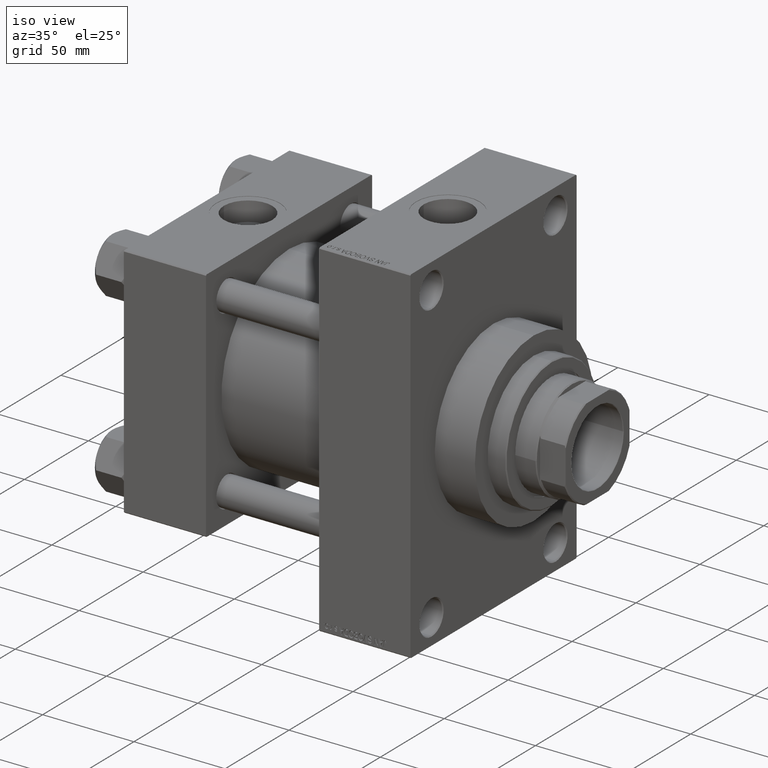
[diagram: clean part render]
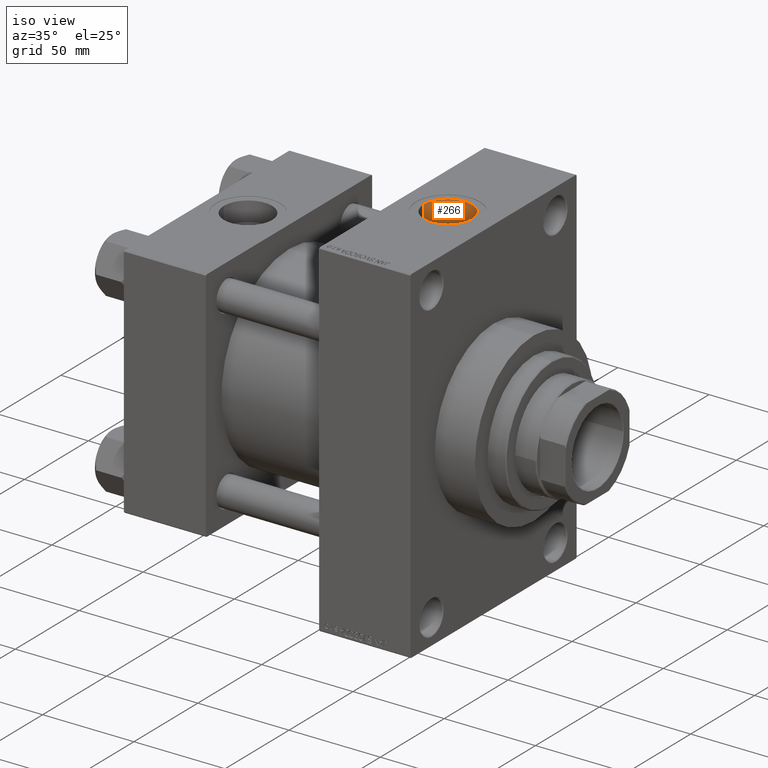
[diagram: same view with one face highlighted and labeled with its STEP entity id]
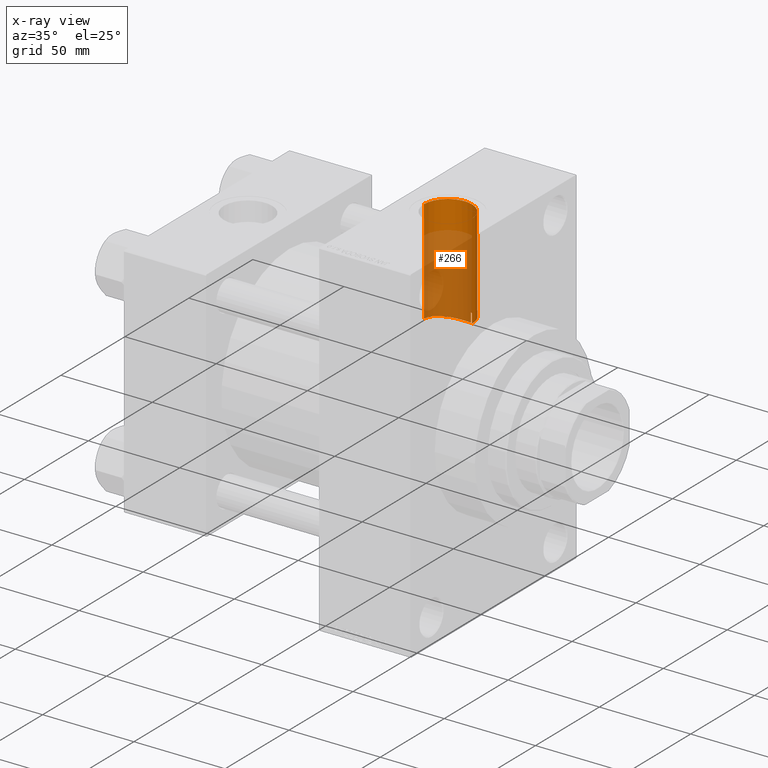
[diagram: x-ray of the same camera — body ghosted, the highlighted face saturated]
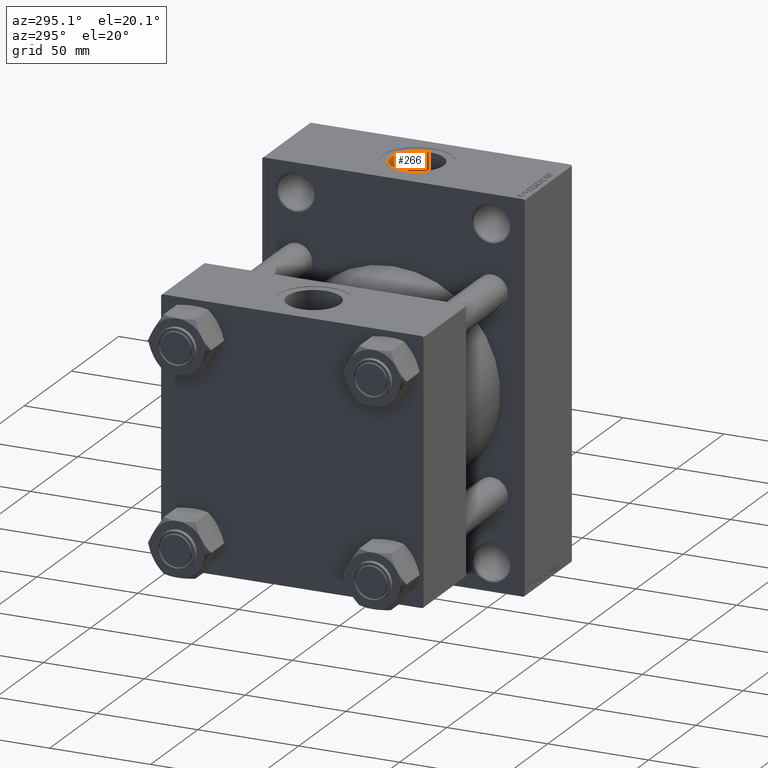
[diagram: same view with one face highlighted and labeled with its STEP entity id]
A machine part, iso view. The second image highlights one B-rep face of the part: STEP entity #266.
The next image is the same camera in x-ray: the body ghosted, the highlighted face saturated — about 66% of this face is hidden behind the body in this view.
A second angle (auxiliary view) of the same face is appended — the face is thin or edge-on in the first view.
In plain terms, the highlighted cylindrical surface (edge-blend (fillet) strip) has radius 13.22 mm, axis along (0, 0, -1).
Its self-contained STEP definition (entity closure, byte-faithful):
#248 = EDGE_CURVE ( 'NONE', #12705, #26371, #42294, .T. ) ;
#266 = ADVANCED_FACE ( 'NONE', ( #28784 ), #31915, .F. ) ;
#365 = ORIENTED_EDGE ( 'NONE', *, *, #10001, .F. ) ;
#1930 = CARTESIAN_POINT ( 'NONE',  ( 145.2200000000000273, 1.618983068472802532E-15, 117.7999999999999545 ) ) ;
#1947 = CARTESIAN_POINT ( 'NONE',  ( 123.6646875080168684, 10.27358711865541174, 36.58624237847440241 ) ) ;
#2222 = CARTESIAN_POINT ( 'NONE',  ( 138.9652939437245323, 11.25862793121222794, 41.24295429618410935 ) ) ;
#3438 = CARTESIAN_POINT ( 'NONE',  ( 145.2200000000000557, 0.7128280605864657504, 42.75000000000000000 ) ) ;
#3665 = CARTESIAN_POINT ( 'NONE',  ( 144.9920876238891481, 2.469797748352716038, 42.68003640910877294 ) ) ;
#4504 = EDGE_CURVE ( 'NONE', #33328, #23657, #36617, .T. ) ;
#5345 = CARTESIAN_POINT ( 'NONE',  ( 120.4196655872704156, 6.397496821543470880, 37.46048315550977037 ) ) ;
#5576 = CARTESIAN_POINT ( 'NONE',  ( 123.2767444913755241, 9.946585948839693714, 36.67693463411971067 ) ) ;
#5810 = CARTESIAN_POINT ( 'NONE',  ( 124.4737087384340555, 10.88020985411995589, 36.41044846182738581 ) ) ;
#6047 = CARTESIAN_POINT ( 'NONE',  ( 119.3778971728958282, 4.062892629112905496, 37.79548799711346163 ) ) ;
#6742 = CARTESIAN_POINT ( 'NONE',  ( 135.7400000000000091, 12.67993690836040344, 35.82204907595320265 ) ) ;
#9208 = CARTESIAN_POINT ( 'NONE',  ( 121.5365498440031757, 8.095730104901397439, 37.12974234449202982 ) ) ;
#9413 = ORIENTED_EDGE ( 'NONE', *, *, #26811, .F. ) ;
#9457 = AXIS2_PLACEMENT_3D ( 'NONE', #31619, #42705, #13739 ) ;
#9676 = CARTESIAN_POINT ( 'NONE',  ( 130.1279962358461546, 13.09681056689220213, 35.67188185037125692 ) ) ;
#9886 = ORIENTED_EDGE ( 'NONE', *, *, #248, .T. ) ;
#10001 = EDGE_CURVE ( 'NONE', #21607, #23657, #45879, .T. ) ;
#10808 = CARTESIAN_POINT ( 'NONE',  ( 135.7400000000000091, 12.67993690836040344, 117.7999999999999545 ) ) ;
#11772 = CARTESIAN_POINT ( 'NONE',  ( 145.2200000000000273, 1.618983068472802926E-15, 94.79999999999996874 ) ) ;
#11820 = CARTESIAN_POINT ( 'NONE',  ( 143.3681678082568851, 6.757087634520167363, 42.21369697903652707 ) ) ;
#12705 = VERTEX_POINT ( 'NONE', #31387 ) ;
#12743 = VERTEX_POINT ( 'NONE', #6742 ) ;
#12868 = CARTESIAN_POINT ( 'NONE',  ( 135.7400000000000091, 12.67993690836040344, 40.82623788692756506 ) ) ;
#13118 = CARTESIAN_POINT ( 'NONE',  ( 137.0879043388673040, 12.22198265844281728, 40.96689205292911140 ) ) ;
#13311 = CARTESIAN_POINT ( 'NONE',  ( 126.2275989359079347, 11.90429981927680636, 36.08787882260794078 ) ) ;
#13739 = DIRECTION ( 'NONE',  ( 1.000000000000000000, 0.000000000000000000, 0.000000000000000000 ) ) ;
#14555 = CARTESIAN_POINT ( 'NONE',  ( 144.7498696806301552, 3.512400709947661070, 42.60688462453909864 ) ) ;
#15906 = CARTESIAN_POINT ( 'NONE',  ( 142.1508856579517897, 8.498775455946683266, 41.90066282866281711 ) ) ;
#16228 = CARTESIAN_POINT ( 'NONE',  ( 145.2200000000000273, 5.235365066362932155E-15, 42.75000000000000000 ) ) ;
#16699 = CARTESIAN_POINT ( 'NONE',  ( 125.7708974169249529, 11.67150488739251202, 36.16418007451800776 ) ) ;
#16719 = VECTOR ( 'NONE', #46115, 1000.000000000000000 ) ;
#16978 = CARTESIAN_POINT ( 'NONE',  ( 139.8392309499369333, 10.65085741936022679, 41.40248309854266040 ) ) ;
#17183 = DIRECTION ( 'NONE',  ( 0.000000000000000000, 0.000000000000000000, -1.000000000000000000 ) ) ;
#17415 = CARTESIAN_POINT ( 'NONE',  ( 133.7262910150043353, 13.11687709635734933, 35.66449319161083764 ) ) ;
#17658 = CARTESIAN_POINT ( 'NONE',  ( 132.1929245059119751, 13.22853373566559476, 35.62312093936006363 ) ) ;
#18370 = CARTESIAN_POINT ( 'NONE',  ( 130.6429904835857201, 13.16039151796706719, 35.64835659901555687 ) ) ;
#18415 = CARTESIAN_POINT ( 'NONE',  ( 145.2200000000000273, 5.235365066362932155E-15, 42.75000000000000000 ) ) ;
#19540 = CARTESIAN_POINT ( 'NONE',  ( 144.6496243838042801, 3.857681275829315748, 42.57693607211757580 ) ) ;
#20958 = AXIS2_PLACEMENT_3D ( 'NONE', #28054, #46621, #38907 ) ;
#21002 = ORIENTED_EDGE ( 'NONE', *, *, #31391, .F. ) ;
#21037 = CARTESIAN_POINT ( 'NONE',  ( 134.7394249595122631, 12.94326451559381397, 35.72786647778971769 ) ) ;
#21607 = VERTEX_POINT ( 'NONE', #11772 ) ;
#23400 = CARTESIAN_POINT ( 'NONE',  ( 141.6858958810278466, 9.024595134817808173, 41.78957529832796070 ) ) ;
#23657 = VERTEX_POINT ( 'NONE', #16228 ) ;
#23719 = ORIENTED_EDGE ( 'NONE', *, *, #46091, .T. ) ;
#23943 = CARTESIAN_POINT ( 'NONE',  ( 122.1862536335408720, 8.872148406854295288, 36.95190922194040439 ) ) ;
#24177 = CARTESIAN_POINT ( 'NONE',  ( 119.0207089073834226, 2.563288280031358557, 37.91676483506162754 ) ) ;
#24893 = CARTESIAN_POINT ( 'NONE',  ( 135.7400000000000091, 12.67993690836040344, 35.82204907595320265 ) ) ;
#25424 = CARTESIAN_POINT ( 'NONE',  ( 144.9210219195441596, 2.818391061395473685, 42.65841356615450053 ) ) ;
#25580 = VECTOR ( 'NONE', #17183, 1000.000000000000000 ) ;
#26003 = LINE ( 'NONE', #10808, #45705 ) ;
#26371 = VERTEX_POINT ( 'NONE', #39200 ) ;
#26539 = CARTESIAN_POINT ( 'NONE',  ( 144.3113288498328188, 4.868756459318225538, 42.47724650916214983 ) ) ;
#26811 = EDGE_CURVE ( 'NONE', #12705, #21607, #40307, .T. ) ;
#28041 = CARTESIAN_POINT ( 'NONE',  ( 127.6411868225753636, 12.52307552529214618, 35.87982703132361451 ) ) ;
#28054 = CARTESIAN_POINT ( 'NONE',  ( 132.0000000000000000, 0.000000000000000000, 117.7999999999999545 ) ) ;
#28535 = CARTESIAN_POINT ( 'NONE',  ( 118.7800000000000011, 0.000000000000000000, 117.7999999999999545 ) ) ;
#28784 = FACE_OUTER_BOUND ( 'NONE', #34163, .T. ) ;
#29298 = CARTESIAN_POINT ( 'NONE',  ( 142.7881170177278989, 7.649199120474215796, 42.06109021706770079 ) ) ;
#30634 = CARTESIAN_POINT ( 'NONE',  ( 145.1627215507658661, 1.419340817186896642, 42.73218467206118021 ) ) ;
#30953 = CARTESIAN_POINT ( 'NONE',  ( 120.6766881679797621, 6.841684745575781434, 37.38151937335765496 ) ) ;
#31199 = CARTESIAN_POINT ( 'NONE',  ( 118.9296438586280260, 2.049460351701852368, 37.94815730009317178 ) ) ;
#31387 = CARTESIAN_POINT ( 'NONE',  ( 118.7800000000000011, 0.000000000000000000, 94.79999999999996874 ) ) ;
#31391 = EDGE_CURVE ( 'NONE', #33328, #12743, #26003, .T. ) ;
#31468 = CARTESIAN_POINT ( 'NONE',  ( 135.7400000000000091, 12.67993690836040344, 40.82623788692756506 ) ) ;
#31619 = CARTESIAN_POINT ( 'NONE',  ( 132.0000000000000000, 0.000000000000000000, 94.79999999999996874 ) ) ;
#31659 = CARTESIAN_POINT ( 'NONE',  ( 118.8096871343879002, 1.024765291550095547, 37.98964051294835542 ) ) ;
#31708 = CARTESIAN_POINT ( 'NONE',  ( 140.1227174788365915, 10.43618952212772832, 41.45722565518245517 ) ) ;
#31915 = CYLINDRICAL_SURFACE ( 'NONE', #20958, 13.22000000000000952 ) ;
#32059 = B_SPLINE_CURVE_WITH_KNOTS ( 'NONE', 3,
 ( #34566, #39128, #31659, #31199, #24177, #6047, #42280, #5345, #30953, #34802, #9208, #23943, #38664, #5576, #1947, #5810, #46373, #16699, #13311, #28041, #42745, #9676, #18370, #44189, #17658, #46847, #17415, #21037, #43948, #24893 ),
 .UNSPECIFIED., .F., .F.,
 ( 4, 2, 2, 2, 2, 2, 2, 2, 2, 2, 2, 2, 2, 2, 4 ),
 ( 0.04166013637941433367, 0.04319771166362023490, 0.04473528694782612919, 0.04781043751623791777, 0.04934801280044380511, 0.05088558808464968553, 0.05242316336885557287, 0.05396073865306145328, 0.05549831393726734063, 0.05703588922147322104, 0.06011103978988499574, 0.06164861507409088309, 0.06318619035829677044, 0.06472376564250265085, 0.06626134092670854514 ),
 .UNSPECIFIED. ) ;
#33328 = VERTEX_POINT ( 'NONE', #12868 ) ;
#34163 = EDGE_LOOP ( 'NONE', ( #365, #9413, #9886, #23719, #21002, #38746 ) ) ;
#34566 = CARTESIAN_POINT ( 'NONE',  ( 118.7800000000000011, 4.670198152195978506E-15, 38.00000000000000000 ) ) ;
#34802 = CARTESIAN_POINT ( 'NONE',  ( 121.2346256052195912, 7.689782515989653788, 37.21631209127711060 ) ) ;
#35313 = CARTESIAN_POINT ( 'NONE',  ( 138.3566742675307069, 11.61276551564073145, 41.14373320031093328 ) ) ;
#36514 = CARTESIAN_POINT ( 'NONE',  ( 143.5441554628930021, 6.451719876449960367, 42.26153051605047040 ) ) ;
#36617 = B_SPLINE_CURVE_WITH_KNOTS ( 'NONE', 3,
 ( #31468, #46178, #13118, #35313, #2222, #16978, #31708, #46419, #47382, #23400, #15906, #29298, #36751, #11820, #36514, #37874, #26539, #19540, #14555, #25424, #3665, #30634, #3438, #18415 ),
 .UNSPECIFIED., .F., .F.,
 ( 4, 2, 2, 2, 2, 2, 2, 2, 2, 2, 2, 4 ),
 ( 0.000000000000000000, 0.002127714298774653189, 0.004255428597549306378, 0.005319285746936633190, 0.006383142896323960001, 0.008510857195098609287, 0.009574714344485936099, 0.01063857149387326291, 0.01276628579264791827, 0.01383014294203524334, 0.01489400009142257189, 0.01702171439019721164 ),
 .UNSPECIFIED. ) ;
#36751 = CARTESIAN_POINT ( 'NONE',  ( 142.9906410470005085, 7.355221410213309774, 42.11359832578122564 ) ) ;
#37874 = CARTESIAN_POINT ( 'NONE',  ( 144.0344437705744554, 5.516867045286193871, 42.39720841868732748 ) ) ;
#38664 = CARTESIAN_POINT ( 'NONE',  ( 122.5346530381058301, 9.243211865870195609, 36.86048209934023845 ) ) ;
#38746 = ORIENTED_EDGE ( 'NONE', *, *, #4504, .T. ) ;
#38907 = DIRECTION ( 'NONE',  ( -1.000000000000000000, 0.000000000000000000, 0.000000000000000000 ) ) ;
#39128 = CARTESIAN_POINT ( 'NONE',  ( 118.7800000000000296, 0.5123942091390820686, 38.00000000000001421 ) ) ;
#39200 = CARTESIAN_POINT ( 'NONE',  ( 118.7800000000000011, 4.670198152195978506E-15, 38.00000000000000000 ) ) ;
#40259 = DIRECTION ( 'NONE',  ( 0.000000000000000000, 0.000000000000000000, -1.000000000000000000 ) ) ;
#40307 = CIRCLE ( 'NONE', #9457, 13.22000000000000952 ) ;
#42280 = CARTESIAN_POINT ( 'NONE',  ( 119.7276034401947129, 5.021107990086653317, 37.67826336039711776 ) ) ;
#42294 = LINE ( 'NONE', #28535, #25580 ) ;
#42705 = DIRECTION ( 'NONE',  ( -0.000000000000000000, -0.000000000000000000, -1.000000000000000000 ) ) ;
#42745 = CARTESIAN_POINT ( 'NONE',  ( 128.6161393418148862, 12.82059544320182987, 35.77248578963132530 ) ) ;
#43948 = CARTESIAN_POINT ( 'NONE',  ( 135.2465992284542438, 12.82546751304066390, 35.77053558263882849 ) ) ;
#44189 = CARTESIAN_POINT ( 'NONE',  ( 131.6781624700284681, 13.22625420661951168, 35.62397272594166253 ) ) ;
#45705 = VECTOR ( 'NONE', #40259, 1000.000000000000000 ) ;
#45879 = LINE ( 'NONE', #1930, #16719 ) ;
#46091 = EDGE_CURVE ( 'NONE', #26371, #12743, #32059, .T. ) ;
#46115 = DIRECTION ( 'NONE',  ( 0.000000000000000000, 0.000000000000000000, -1.000000000000000000 ) ) ;
#46178 = CARTESIAN_POINT ( 'NONE',  ( 136.4277657072452712, 12.47707755947821084, 40.88924255936937868 ) ) ;
#46373 = CARTESIAN_POINT ( 'NONE',  ( 124.8947888654771106, 11.15982616624254398, 36.32533863211517655 ) ) ;
#46419 = CARTESIAN_POINT ( 'NONE',  ( 140.6671844818738464, 9.988618730331630502, 41.56733220482826852 ) ) ;
#46621 = DIRECTION ( 'NONE',  ( 0.000000000000000000, 0.000000000000000000, -1.000000000000000000 ) ) ;
#46847 = CARTESIAN_POINT ( 'NONE',  ( 133.2169889944972851, 13.17384767058950423, 35.64338070116269819 ) ) ;
#47382 = CARTESIAN_POINT ( 'NONE',  ( 140.9292914793964258, 9.754948885942525294, 41.62290027704879236 ) ) ;